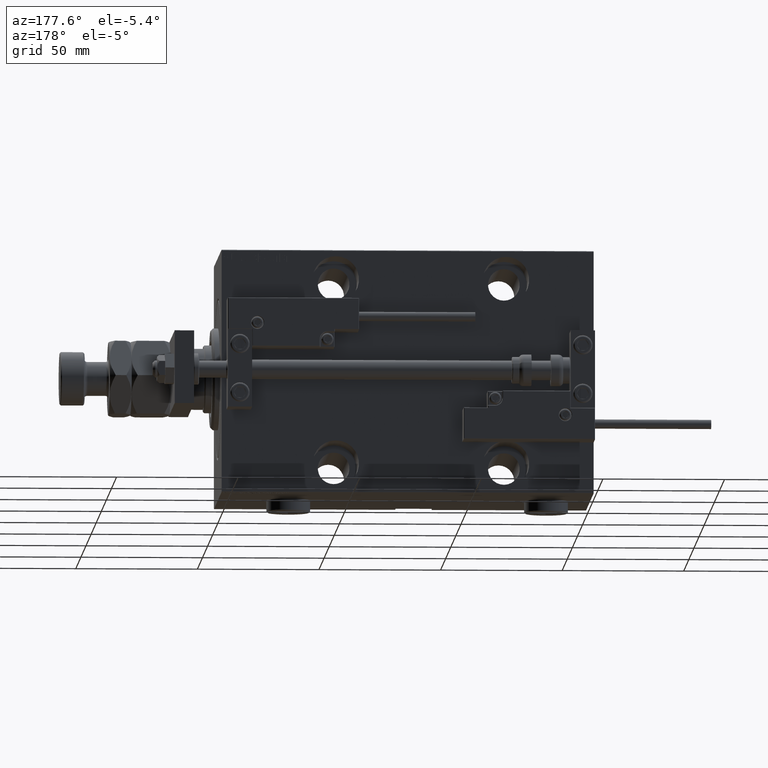
[diagram: clean part render]
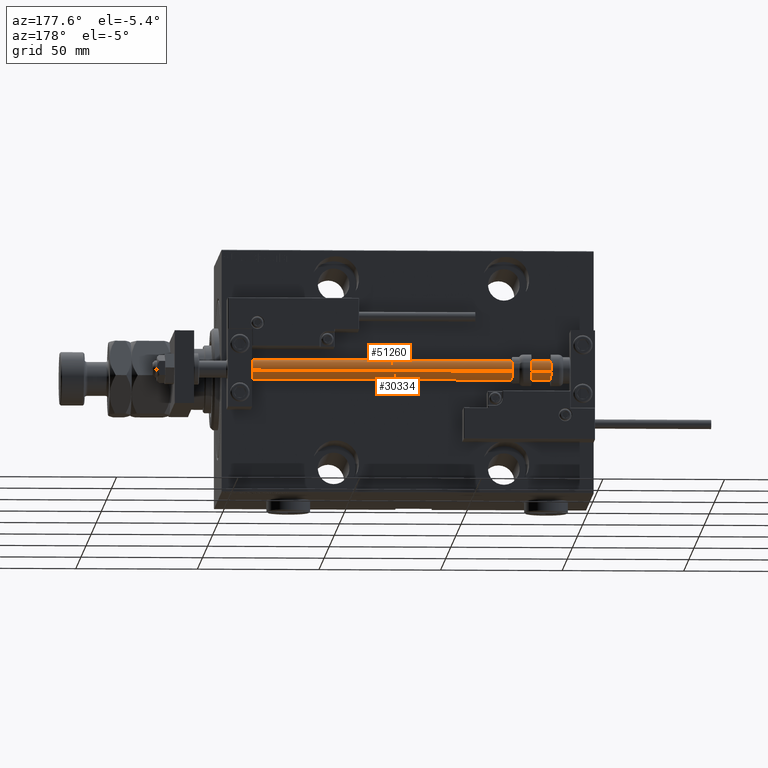
[diagram: same view with one multi-face feature highlighted, each face labeled with its STEP entity id]
A machine part, auxiliary view. The highlighted faces form ONE feature: a constant-radius fillet chain: 2 tangent blend faces with common blend radius 4 mm. The faces share edges in the B-rep.
Their STEP definitions:
[1] entity #30334 (Cylinder):
#988 = VERTEX_POINT ( 'NONE', #30758 ) ;
#1352 = ORIENTED_EDGE ( 'NONE', *, *, #48622, .F. ) ;
#1992 = LINE ( 'NONE', #9027, #42190 ) ;
#2520 = FACE_OUTER_BOUND ( 'NONE', #47002, .T. ) ;
#3388 = VECTOR ( 'NONE', #50359, 1000.000000000000000 ) ;
#4580 = EDGE_CURVE ( 'NONE', #24182, #8219, #26489, .T. ) ;
#5060 = AXIS2_PLACEMENT_3D ( 'NONE', #6308, #27447, #26918 ) ;
#5579 = LINE ( 'NONE', #30494, #3388 ) ;
#6308 = CARTESIAN_POINT ( 'NONE',  ( 0.000000000000000000, 0.000000000000000000, 153.0000000000000000 ) ) ;
#8219 = VERTEX_POINT ( 'NONE', #26958 ) ;
#9027 = CARTESIAN_POINT ( 'NONE',  ( 4.000000000000000000, 4.898587196589412829E-16, 153.0000000000000000 ) ) ;
#10562 = DIRECTION ( 'NONE',  ( -0.000000000000000000, -0.000000000000000000, -1.000000000000000000 ) ) ;
#11618 = DIRECTION ( 'NONE',  ( -0.000000000000000000, -0.000000000000000000, -1.000000000000000000 ) ) ;
#15883 = DIRECTION ( 'NONE',  ( -1.000000000000000000, 0.000000000000000000, 0.000000000000000000 ) ) ;
#16079 = DIRECTION ( 'NONE',  ( -0.000000000000000000, -0.000000000000000000, 1.000000000000000000 ) ) ;
#17654 = VERTEX_POINT ( 'NONE', #24733 ) ;
#22243 = EDGE_CURVE ( 'NONE', #24182, #988, #1992, .T. ) ;
#24182 = VERTEX_POINT ( 'NONE', #48734 ) ;
#24733 = CARTESIAN_POINT ( 'NONE',  ( -4.000000000000000000, 0.000000000000000000, 2.000000000000029310 ) ) ;
#26489 = CIRCLE ( 'NONE', #5060, 4.000000000000000000 ) ;
#26918 = DIRECTION ( 'NONE',  ( 1.000000000000000000, 0.000000000000000000, 0.000000000000000000 ) ) ;
#26958 = CARTESIAN_POINT ( 'NONE',  ( -4.000000000000000000, 0.000000000000000000, 153.0000000000000000 ) ) ;
#27447 = DIRECTION ( 'NONE',  ( 0.000000000000000000, 0.000000000000000000, 1.000000000000000000 ) ) ;
#28128 = DIRECTION ( 'NONE',  ( 1.000000000000000000, 0.000000000000000000, 0.000000000000000000 ) ) ;
#28396 = CARTESIAN_POINT ( 'NONE',  ( 0.000000000000000000, 0.000000000000000000, 2.000000000000029310 ) ) ;
#30334 = ADVANCED_FACE ( 'NONE', ( #2520 ), #48335, .T. ) ;
#30494 = CARTESIAN_POINT ( 'NONE',  ( -4.000000000000000000, 0.000000000000000000, 153.0000000000000000 ) ) ;
#30758 = CARTESIAN_POINT ( 'NONE',  ( 4.000000000000000000, 4.898587196589412829E-16, 2.000000000000029310 ) ) ;
#31037 = AXIS2_PLACEMENT_3D ( 'NONE', #28396, #16079, #28128 ) ;
#32851 = ORIENTED_EDGE ( 'NONE', *, *, #4580, .F. ) ;
#33816 = AXIS2_PLACEMENT_3D ( 'NONE', #52626, #11618, #15883 ) ;
#40434 = CIRCLE ( 'NONE', #31037, 4.000000000000000000 ) ;
#40612 = ORIENTED_EDGE ( 'NONE', *, *, #22243, .T. ) ;
#42190 = VECTOR ( 'NONE', #10562, 1000.000000000000000 ) ;
#47002 = EDGE_LOOP ( 'NONE', ( #32851, #40612, #47433, #1352 ) ) ;
#47433 = ORIENTED_EDGE ( 'NONE', *, *, #50290, .T. ) ;
#48335 = CYLINDRICAL_SURFACE ( 'NONE', #33816, 4.000000000000000000 ) ;
#48622 = EDGE_CURVE ( 'NONE', #8219, #17654, #5579, .T. ) ;
#48734 = CARTESIAN_POINT ( 'NONE',  ( 4.000000000000000000, 4.898587196589412829E-16, 153.0000000000000000 ) ) ;
#50290 = EDGE_CURVE ( 'NONE', #988, #17654, #40434, .T. ) ;
#50359 = DIRECTION ( 'NONE',  ( -0.000000000000000000, -0.000000000000000000, -1.000000000000000000 ) ) ;
#52626 = CARTESIAN_POINT ( 'NONE',  ( 0.000000000000000000, 0.000000000000000000, 153.0000000000000000 ) ) ;
[2] entity #51260 (Cylinder):
#988 = VERTEX_POINT ( 'NONE', #30758 ) ;
#1992 = LINE ( 'NONE', #9027, #42190 ) ;
#2256 = ORIENTED_EDGE ( 'NONE', *, *, #48622, .T. ) ;
#2500 = EDGE_CURVE ( 'NONE', #8219, #24182, #19296, .T. ) ;
#3388 = VECTOR ( 'NONE', #50359, 1000.000000000000000 ) ;
#5579 = LINE ( 'NONE', #30494, #3388 ) ;
#6994 = EDGE_CURVE ( 'NONE', #17654, #988, #12877, .T. ) ;
#7959 = DIRECTION ( 'NONE',  ( -0.000000000000000000, -0.000000000000000000, 1.000000000000000000 ) ) ;
#8219 = VERTEX_POINT ( 'NONE', #26958 ) ;
#9027 = CARTESIAN_POINT ( 'NONE',  ( 4.000000000000000000, 4.898587196589412829E-16, 153.0000000000000000 ) ) ;
#10562 = DIRECTION ( 'NONE',  ( -0.000000000000000000, -0.000000000000000000, -1.000000000000000000 ) ) ;
#11348 = AXIS2_PLACEMENT_3D ( 'NONE', #31716, #40030, #19143 ) ;
#11935 = ORIENTED_EDGE ( 'NONE', *, *, #2500, .F. ) ;
#12877 = CIRCLE ( 'NONE', #32518, 4.000000000000000000 ) ;
#15234 = DIRECTION ( 'NONE',  ( 1.000000000000000000, 0.000000000000000000, 0.000000000000000000 ) ) ;
#16586 = CARTESIAN_POINT ( 'NONE',  ( 0.000000000000000000, 0.000000000000000000, 153.0000000000000000 ) ) ;
#17383 = DIRECTION ( 'NONE',  ( 1.000000000000000000, 0.000000000000000000, 0.000000000000000000 ) ) ;
#17654 = VERTEX_POINT ( 'NONE', #24733 ) ;
#17655 = DIRECTION ( 'NONE',  ( 0.000000000000000000, 0.000000000000000000, 1.000000000000000000 ) ) ;
#19143 = DIRECTION ( 'NONE',  ( -1.000000000000000000, 0.000000000000000000, 0.000000000000000000 ) ) ;
#19296 = CIRCLE ( 'NONE', #32125, 4.000000000000000000 ) ;
#19921 = FACE_OUTER_BOUND ( 'NONE', #23128, .T. ) ;
#21429 = ORIENTED_EDGE ( 'NONE', *, *, #6994, .T. ) ;
#22243 = EDGE_CURVE ( 'NONE', #24182, #988, #1992, .T. ) ;
#23128 = EDGE_LOOP ( 'NONE', ( #40725, #11935, #2256, #21429 ) ) ;
#24182 = VERTEX_POINT ( 'NONE', #48734 ) ;
#24733 = CARTESIAN_POINT ( 'NONE',  ( -4.000000000000000000, 0.000000000000000000, 2.000000000000029310 ) ) ;
#26958 = CARTESIAN_POINT ( 'NONE',  ( -4.000000000000000000, 0.000000000000000000, 153.0000000000000000 ) ) ;
#28045 = CARTESIAN_POINT ( 'NONE',  ( 0.000000000000000000, 0.000000000000000000, 2.000000000000029310 ) ) ;
#30494 = CARTESIAN_POINT ( 'NONE',  ( -4.000000000000000000, 0.000000000000000000, 153.0000000000000000 ) ) ;
#30758 = CARTESIAN_POINT ( 'NONE',  ( 4.000000000000000000, 4.898587196589412829E-16, 2.000000000000029310 ) ) ;
#31716 = CARTESIAN_POINT ( 'NONE',  ( 0.000000000000000000, 0.000000000000000000, 153.0000000000000000 ) ) ;
#32125 = AXIS2_PLACEMENT_3D ( 'NONE', #16586, #17655, #17383 ) ;
#32518 = AXIS2_PLACEMENT_3D ( 'NONE', #28045, #7959, #15234 ) ;
#35213 = CYLINDRICAL_SURFACE ( 'NONE', #11348, 4.000000000000000000 ) ;
#40030 = DIRECTION ( 'NONE',  ( -0.000000000000000000, -0.000000000000000000, -1.000000000000000000 ) ) ;
#40725 = ORIENTED_EDGE ( 'NONE', *, *, #22243, .F. ) ;
#42190 = VECTOR ( 'NONE', #10562, 1000.000000000000000 ) ;
#48622 = EDGE_CURVE ( 'NONE', #8219, #17654, #5579, .T. ) ;
#48734 = CARTESIAN_POINT ( 'NONE',  ( 4.000000000000000000, 4.898587196589412829E-16, 153.0000000000000000 ) ) ;
#50359 = DIRECTION ( 'NONE',  ( -0.000000000000000000, -0.000000000000000000, -1.000000000000000000 ) ) ;
#51260 = ADVANCED_FACE ( 'NONE', ( #19921 ), #35213, .T. ) ;